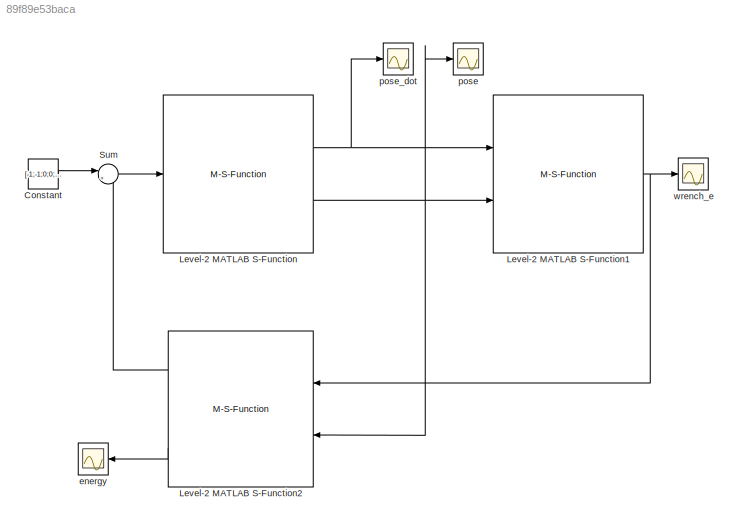
MODEL slx_89f89e53baca
KIND model
CONFIG AbsTol = auto
CONFIG FixedStep = auto
CONFIG MaxStep = auto
CONFIG MinStep = auto
CONFIG RelTol = 1e-3
CONFIG SampleTimeConstraint = Unconstrained
CONFIG Solver = VariableStepAuto
CONFIG SolverMode = Auto
CONFIG SolverName = VariableStepAuto
CONFIG StartTime = 0.0
CONFIG StopTime = 100
BLOCK [Constant] Constant
  Value = [-1;-1;0;0;0;0.5]
BLOCK [M-S-Function] Level-2 MATLAB S-Function
  FunctionName = HapticDevice
  Parameters = miDevice, bDevice, pose_dot0, pose0, dof
  Ports = [1, 2]
BLOCK [M-S-Function] Level-2 MATLAB S-Function1
  FunctionName = VirtualEnvironment
  Parameters = kWall, bWall, nWall, pWall, vertices, dof, tsampling
  Ports = [2, 1]
BLOCK [M-S-Function] Level-2 MATLAB S-Function2
  FunctionName = Controller_more
  Parameters = bDevice, pose0, dof, tsampling
  Ports = [2, 3]
BLOCK [Sum] Sum
  IconShape = round
  InputSameDT = off
  Inputs = |++
  OutDataTypeStr = Inherit: Inherit via internal rule
  Ports = [2, 1]
  SaturateOnIntegerOverflow = off
BLOCK [Scope] energy
  Ports = [1]
  ScopeSpecificationString = Simulink.scopes.TimeScopeBlockCfg('CurrentConfiguration', extmgr.ConfigurationSet(extmgr.Configuration('Core','General UI',true),extmgr.Configuration('Core','Source UI',true),extmgr.Configuration('Sources','WiredSimulink',true,'DataLoggingVariableName','ScopeData1'),extmgr.Configuration('Visuals','Time Domain',true,'SerializedDisplays',{struct('MinYLimReal','-10.3926','MaxYLimReal','93.53338','YLa...<+1418ch>
BLOCK [Scope] pose
  Ports = [1]
  ScopeSpecificationString = Simulink.scopes.TimeScopeBlockCfg('CurrentConfiguration', extmgr.ConfigurationSet(extmgr.Configuration('Core','General UI',true),extmgr.Configuration('Core','Source UI',true),extmgr.Configuration('Sources','WiredSimulink',true),extmgr.Configuration('Visuals','Time Domain',true,'SerializedDisplays',{struct('MinYLimReal','-22.38659','MaxYLimReal','193.01219','YLabelReal','','MinYLimMag','0.00000','M...<+1619ch>
BLOCK [Scope] pose_dot
  Ports = [1]
  ScopeSpecificationString = Simulink.scopes.TimeScopeBlockCfg('CurrentConfiguration', extmgr.ConfigurationSet(extmgr.Configuration('Core','General UI',true),extmgr.Configuration('Core','Source UI',true),extmgr.Configuration('Sources','WiredSimulink',true,'DataLoggingVariableName','ScopeData1'),extmgr.Configuration('Visuals','Time Domain',true,'SerializedDisplays',{struct('MinYLimReal','-7.63451','MaxYLimReal','5.72015','YLab...<+1548ch>
BLOCK [Scope] wrench_e
  Ports = [1]
  ScopeSpecificationString = Simulink.scopes.TimeScopeBlockCfg('CurrentConfiguration', extmgr.ConfigurationSet(extmgr.Configuration('Core','General UI',true),extmgr.Configuration('Core','Source UI',true),extmgr.Configuration('Sources','WiredSimulink',true,'DataLoggingVariableName','ScopeData2'),extmgr.Configuration('Visuals','Time Domain',true,'SerializedDisplays',{struct('MinYLimReal','-514.75564','MaxYLimReal','458.11223','...<+1627ch>
LINE Constant:1 -> Sum:1
NET Level-2 MATLAB S-Function1:1 -> Level-2 MATLAB S-Function2:1, wrench_e:1
LINE Level-2 MATLAB S-Function2:1 -> Sum:2
LINE Level-2 MATLAB S-Function2:3 -> energy:1
NET Level-2 MATLAB S-Function:1 -> Level-2 MATLAB S-Function1:1, pose_dot:1
NET Level-2 MATLAB S-Function:2 -> Level-2 MATLAB S-Function1:2, Level-2 MATLAB S-Function2:2, pose:1
LINE Sum:1 -> Level-2 MATLAB S-Function:1
note: NET lines group one-source signal fan-out (src -> all destinations, sorted); 1:1 wires keep LINE
